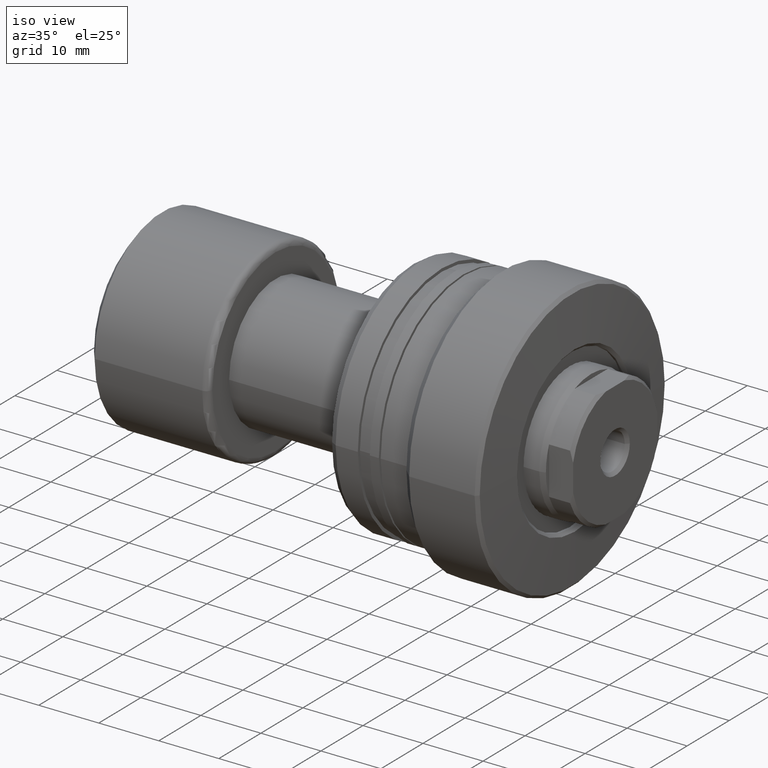
[diagram: clean part render]
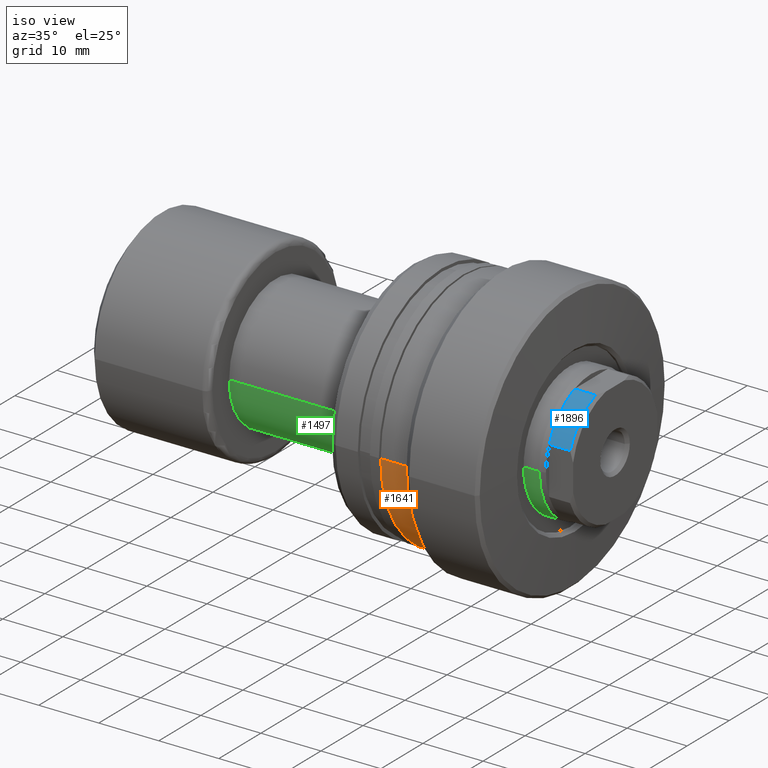
[diagram: same view with three faces highlighted in distinct colors, each labeled with its STEP entity id]
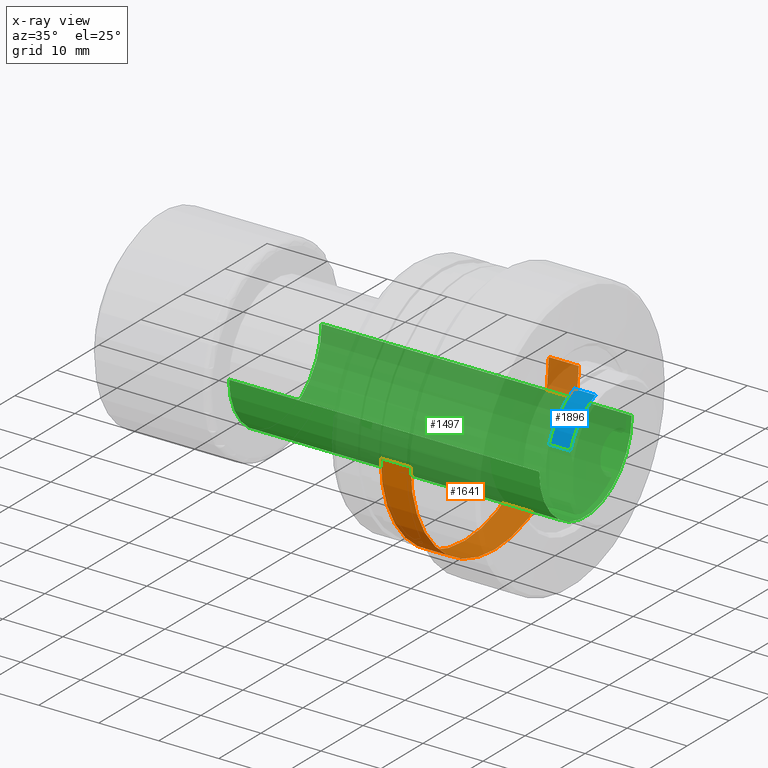
[diagram: x-ray of the same camera — body ghosted, the three highlighted faces saturated]
A machine part, iso view with three faces highlighted in distinct colors.
The next image is the same camera in x-ray (body ghosted, the three faces saturated) — at least one of them is partly hidden behind the body in this view.
Their STEP definitions:

[orange] entity #1641 — the highlighted cylindrical surface (partial cylindrical patch) has radius 20 mm, axis along (-1, 0, 0).
#125 = VERTEX_POINT ( 'NONE', #703 ) ;
#132 = EDGE_CURVE ( 'NONE', #2354, #1679, #2001, .T. ) ;
#211 = EDGE_CURVE ( 'NONE', #125, #1627, #1647, .T. ) ;
#239 = CARTESIAN_POINT ( 'NONE',  ( -19.00000000000000355, -20.00000000000000355, 0.000000000000000000 ) ) ;
#379 = DIRECTION ( 'NONE',  ( -1.000000000000000000, 1.333885945136072597E-15, -0.000000000000000000 ) ) ;
#412 = EDGE_LOOP ( 'NONE', ( #846, #2260, #1187, #1139 ) ) ;
#457 = CYLINDRICAL_SURFACE ( 'NONE', #1361, 19.99999999999998579 ) ;
#514 = DIRECTION ( 'NONE',  ( -1.387778780781446464E-15, -1.000000000000000000, 0.000000000000000000 ) ) ;
#558 = DIRECTION ( 'NONE',  ( -1.000000000000000000, 1.333885945136072597E-15, -0.000000000000000000 ) ) ;
#659 = CARTESIAN_POINT ( 'NONE',  ( -18.99999999999997513, -1.504626382961930063E-14, 0.000000000000000000 ) ) ;
#684 = EDGE_CURVE ( 'NONE', #2354, #125, #1865, .T. ) ;
#703 = CARTESIAN_POINT ( 'NONE',  ( -13.99999999999999645, -20.00000000000000355, 0.000000000000000000 ) ) ;
#794 = VECTOR ( 'NONE', #1350, 1000.000000000000000 ) ;
#846 = ORIENTED_EDGE ( 'NONE', *, *, #132, .F. ) ;
#1107 = CARTESIAN_POINT ( 'NONE',  ( -30.28002276692732408, 0.000000000000000000, 0.000000000000000000 ) ) ;
#1131 = DIRECTION ( 'NONE',  ( -1.301042606982606504E-15, -1.000000000000000000, 0.000000000000000000 ) ) ;
#1139 = ORIENTED_EDGE ( 'NONE', *, *, #1201, .F. ) ;
#1187 = ORIENTED_EDGE ( 'NONE', *, *, #211, .T. ) ;
#1201 = EDGE_CURVE ( 'NONE', #1679, #1627, #1412, .T. ) ;
#1328 = CARTESIAN_POINT ( 'NONE',  ( -13.99999999999997158, -2.171569355529967032E-14, 0.000000000000000000 ) ) ;
#1350 = DIRECTION ( 'NONE',  ( -1.000000000000000000, 1.333885945136072597E-15, -0.000000000000000000 ) ) ;
#1361 = AXIS2_PLACEMENT_3D ( 'NONE', #1107, #558, #2193 ) ;
#1372 = AXIS2_PLACEMENT_3D ( 'NONE', #1328, #379, #1131 ) ;
#1412 = CIRCLE ( 'NONE', #1496, 19.99999999999998934 ) ;
#1434 = DIRECTION ( 'NONE',  ( -1.000000000000000000, 1.333885945136072597E-15, -0.000000000000000000 ) ) ;
#1443 = DIRECTION ( 'NONE',  ( -1.000000000000000000, 1.333885945136072597E-15, -0.000000000000000000 ) ) ;
#1486 = VECTOR ( 'NONE', #1434, 1000.000000000000000 ) ;
#1496 = AXIS2_PLACEMENT_3D ( 'NONE', #659, #1443, #514 ) ;
#1627 = VERTEX_POINT ( 'NONE', #239 ) ;
#1641 = ADVANCED_FACE ( 'NONE', ( #2388 ), #457, .T. ) ;
#1647 = LINE ( 'NONE', #1873, #794 ) ;
#1679 = VERTEX_POINT ( 'NONE', #1820 ) ;
#1732 = CARTESIAN_POINT ( 'NONE',  ( -13.99999999999994493, 19.99999999999996092, 2.449293598294704935E-15 ) ) ;
#1820 = CARTESIAN_POINT ( 'NONE',  ( -18.99999999999994671, 19.99999999999997868, 2.449293598294706119E-15 ) ) ;
#1865 = CIRCLE ( 'NONE', #1372, 19.99999999999998224 ) ;
#1873 = CARTESIAN_POINT ( 'NONE',  ( -30.28002276692735251, -19.99999999999998579, 0.000000000000000000 ) ) ;
#2001 = LINE ( 'NONE', #2030, #1486 ) ;
#2030 = CARTESIAN_POINT ( 'NONE',  ( -30.28002276692729566, 19.99999999999998579, 2.449293598294704935E-15 ) ) ;
#2193 = DIRECTION ( 'NONE',  ( -1.387778780781446662E-15, -1.000000000000000000, 0.000000000000000000 ) ) ;
#2260 = ORIENTED_EDGE ( 'NONE', *, *, #684, .T. ) ;
#2354 = VERTEX_POINT ( 'NONE', #1732 ) ;
#2388 = FACE_OUTER_BOUND ( 'NONE', #412, .T. ) ;

[blue] entity #1896 — the highlighted cylindrical surface (partial cylindrical patch) has radius 10.75 mm, axis along (-1, -0, -0).
#44 = DIRECTION ( 'NONE',  ( 1.069542322069065647E-17, -1.000000000000000000, 0.000000000000000000 ) ) ;
#137 = CIRCLE ( 'NONE', #981, 10.75000000000000000 ) ;
#192 = DIRECTION ( 'NONE',  ( 0.000000000000000000, -1.000000000000000000, 0.000000000000000000 ) ) ;
#255 = EDGE_CURVE ( 'NONE', #646, #429, #137, .T. ) ;
#277 = CARTESIAN_POINT ( 'NONE',  ( 76.49999999999998579, -3.944933459516318575, 10.00000000000043343 ) ) ;
#326 = CARTESIAN_POINT ( 'NONE',  ( 72.99999999999992895, -3.944933459516260399, 10.00000000000043343 ) ) ;
#394 = CARTESIAN_POINT ( 'NONE',  ( 72.99999999999982947, -10.00000000000077627, 3.944933459517253382 ) ) ;
#429 = VERTEX_POINT ( 'NONE', #707 ) ;
#525 = VECTOR ( 'NONE', #1299, 1000.000000000000000 ) ;
#585 = DIRECTION ( 'NONE',  ( -1.000000000000000000, -1.069542322069065801E-17, -0.000000000000000000 ) ) ;
#646 = VERTEX_POINT ( 'NONE', #1523 ) ;
#707 = CARTESIAN_POINT ( 'NONE',  ( 72.99999999999992895, -3.944933459516260399, 10.00000000000043343 ) ) ;
#728 = ORIENTED_EDGE ( 'NONE', *, *, #2357, .T. ) ;
#812 = DIRECTION ( 'NONE',  ( 0.000000000000000000, -1.000000000000000000, 0.000000000000000000 ) ) ;
#814 = CARTESIAN_POINT ( 'NONE',  ( 76.49999999999998579, 8.181998763828351889E-16, 0.000000000000000000 ) ) ;
#871 = CARTESIAN_POINT ( 'NONE',  ( 76.49999999999998579, -10.00000000000083311, 3.944933459517253382 ) ) ;
#981 = AXIS2_PLACEMENT_3D ( 'NONE', #1143, #585, #812 ) ;
#1143 = CARTESIAN_POINT ( 'NONE',  ( 73.00000000000014211, 7.807658951104196354E-16, 0.000000000000000000 ) ) ;
#1222 = AXIS2_PLACEMENT_3D ( 'NONE', #2251, #2301, #44 ) ;
#1292 = ORIENTED_EDGE ( 'NONE', *, *, #2194, .F. ) ;
#1299 = DIRECTION ( 'NONE',  ( 1.000000000000000000, -1.657264799492230625E-14, -0.000000000000000000 ) ) ;
#1430 = ORIENTED_EDGE ( 'NONE', *, *, #1711, .T. ) ;
#1515 = VERTEX_POINT ( 'NONE', #277 ) ;
#1523 = CARTESIAN_POINT ( 'NONE',  ( 72.99999999999982947, -10.00000000000077627, 3.944933459517253382 ) ) ;
#1553 = DIRECTION ( 'NONE',  ( -1.000000000000000000, -1.069542322069063027E-17, -0.000000000000000000 ) ) ;
#1711 = EDGE_CURVE ( 'NONE', #646, #1835, #1855, .T. ) ;
#1739 = CYLINDRICAL_SURFACE ( 'NONE', #1222, 10.75000000000000000 ) ;
#1797 = VECTOR ( 'NONE', #1881, 1000.000000000000000 ) ;
#1835 = VERTEX_POINT ( 'NONE', #871 ) ;
#1855 = LINE ( 'NONE', #394, #1797 ) ;
#1870 = EDGE_LOOP ( 'NONE', ( #1430, #728, #1292, #2246 ) ) ;
#1881 = DIRECTION ( 'NONE',  ( 1.000000000000000000, -1.657264799492230625E-14, -0.000000000000000000 ) ) ;
#1884 = FACE_OUTER_BOUND ( 'NONE', #1870, .T. ) ;
#1896 = ADVANCED_FACE ( 'NONE', ( #1884 ), #1739, .T. ) ;
#1920 = CIRCLE ( 'NONE', #2040, 10.75000000000000000 ) ;
#2040 = AXIS2_PLACEMENT_3D ( 'NONE', #814, #1553, #192 ) ;
#2100 = LINE ( 'NONE', #326, #525 ) ;
#2194 = EDGE_CURVE ( 'NONE', #429, #1515, #2100, .T. ) ;
#2246 = ORIENTED_EDGE ( 'NONE', *, *, #255, .F. ) ;
#2251 = CARTESIAN_POINT ( 'NONE',  ( 0.000000000000000000, 0.000000000000000000, 0.000000000000000000 ) ) ;
#2301 = DIRECTION ( 'NONE',  ( -1.000000000000000000, -1.069542322069065801E-17, -0.000000000000000000 ) ) ;
#2357 = EDGE_CURVE ( 'NONE', #1835, #1515, #1920, .T. ) ;

[green] entity #1497 — the highlighted cylindrical surface (partial cylindrical patch) has radius 11 mm, axis along (-1, -0, -0).
#57 = AXIS2_PLACEMENT_3D ( 'NONE', #1267, #1821, #324 ) ;
#72 = VERTEX_POINT ( 'NONE', #930 ) ;
#116 = ORIENTED_EDGE ( 'NONE', *, *, #1565, .T. ) ;
#151 = AXIS2_PLACEMENT_3D ( 'NONE', #1404, #538, #366 ) ;
#222 = ORIENTED_EDGE ( 'NONE', *, *, #2087, .F. ) ;
#320 = DIRECTION ( 'NONE',  ( -1.000000000000000000, -1.069542322069065801E-17, -0.000000000000000000 ) ) ;
#324 = DIRECTION ( 'NONE',  ( 0.000000000000000000, -1.000000000000000000, 0.000000000000000000 ) ) ;
#366 = DIRECTION ( 'NONE',  ( 0.000000000000000000, -1.000000000000000000, 0.000000000000000000 ) ) ;
#473 = DIRECTION ( 'NONE',  ( -1.000000000000000000, -1.069542322069065801E-17, -0.000000000000000000 ) ) ;
#538 = DIRECTION ( 'NONE',  ( -1.000000000000000000, -1.069542322069065801E-17, -0.000000000000000000 ) ) ;
#725 = CARTESIAN_POINT ( 'NONE',  ( 72.06675751232378957, 11.00000000000018829, 1.347111479062111676E-15 ) ) ;
#764 = EDGE_LOOP ( 'NONE', ( #222, #116, #819, #2037 ) ) ;
#819 = ORIENTED_EDGE ( 'NONE', *, *, #1172, .T. ) ;
#843 = LINE ( 'NONE', #1030, #2273 ) ;
#907 = VERTEX_POINT ( 'NONE', #725 ) ;
#930 = CARTESIAN_POINT ( 'NONE',  ( 20.39999999999999858, -11.00000000000000000, 0.000000000000000000 ) ) ;
#1030 = CARTESIAN_POINT ( 'NONE',  ( 1.176496554275982442E-16, -11.00000000000009237, 0.000000000000000000 ) ) ;
#1064 = CARTESIAN_POINT ( 'NONE',  ( 72.06675751232378957, -11.00000000000018829, 0.000000000000000000 ) ) ;
#1098 = DIRECTION ( 'NONE',  ( 1.069542322069065955E-17, -1.000000000000000000, 0.000000000000000000 ) ) ;
#1172 = EDGE_CURVE ( 'NONE', #1460, #72, #843, .T. ) ;
#1267 = CARTESIAN_POINT ( 'NONE',  ( 72.06675751232378957, 7.707844717371907893E-16, 0.000000000000000000 ) ) ;
#1327 = AXIS2_PLACEMENT_3D ( 'NONE', #2444, #320, #1098 ) ;
#1404 = CARTESIAN_POINT ( 'NONE',  ( 20.39999999999999858, 2.181866337020894116E-16, 0.000000000000000000 ) ) ;
#1460 = VERTEX_POINT ( 'NONE', #1064 ) ;
#1497 = ADVANCED_FACE ( 'NONE', ( #2004 ), #1699, .T. ) ;
#1565 = EDGE_CURVE ( 'NONE', #907, #1460, #2175, .T. ) ;
#1571 = VERTEX_POINT ( 'NONE', #2393 ) ;
#1588 = VECTOR ( 'NONE', #1622, 1000.000000000000000 ) ;
#1622 = DIRECTION ( 'NONE',  ( -1.000000000000000000, -1.069542322069065801E-17, -0.000000000000000000 ) ) ;
#1699 = CYLINDRICAL_SURFACE ( 'NONE', #1327, 11.00000000000009237 ) ;
#1821 = DIRECTION ( 'NONE',  ( -1.000000000000000000, -1.069542322069065801E-17, -0.000000000000000000 ) ) ;
#1834 = CIRCLE ( 'NONE', #151, 11.00000000000000000 ) ;
#1867 = EDGE_CURVE ( 'NONE', #1571, #72, #1834, .T. ) ;
#1927 = CARTESIAN_POINT ( 'NONE',  ( -1.176496554275982442E-16, 11.00000000000009237, 1.347111479062100040E-15 ) ) ;
#2004 = FACE_OUTER_BOUND ( 'NONE', #764, .T. ) ;
#2037 = ORIENTED_EDGE ( 'NONE', *, *, #1867, .F. ) ;
#2087 = EDGE_CURVE ( 'NONE', #907, #1571, #2155, .T. ) ;
#2155 = LINE ( 'NONE', #1927, #1588 ) ;
#2175 = CIRCLE ( 'NONE', #57, 11.00000000000018829 ) ;
#2273 = VECTOR ( 'NONE', #473, 1000.000000000000000 ) ;
#2393 = CARTESIAN_POINT ( 'NONE',  ( 20.39999999999999858, 11.00000000000000000, 1.347111479062094124E-15 ) ) ;
#2444 = CARTESIAN_POINT ( 'NONE',  ( 0.000000000000000000, 0.000000000000000000, 0.000000000000000000 ) ) ;